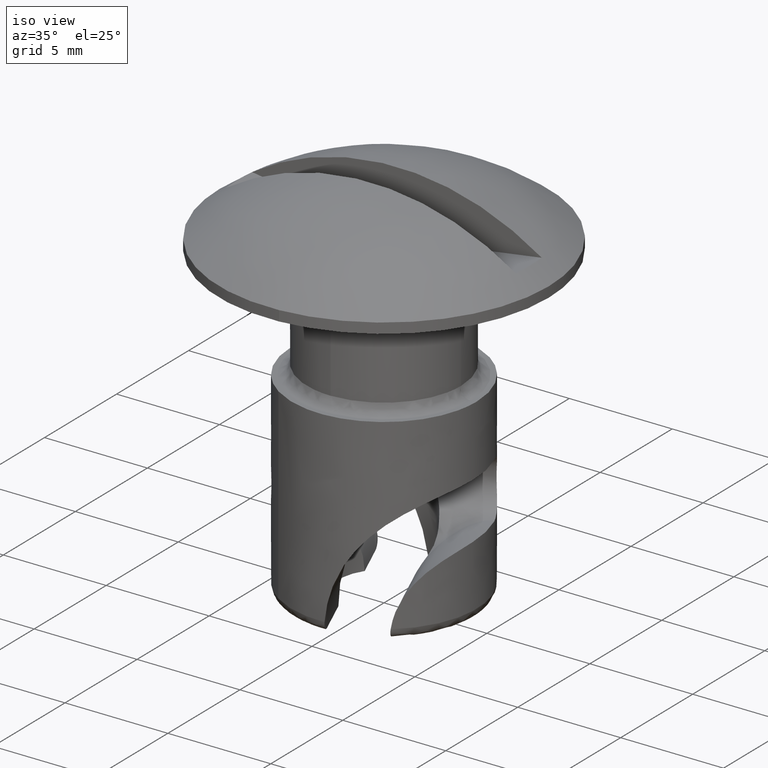
[diagram: clean part render]
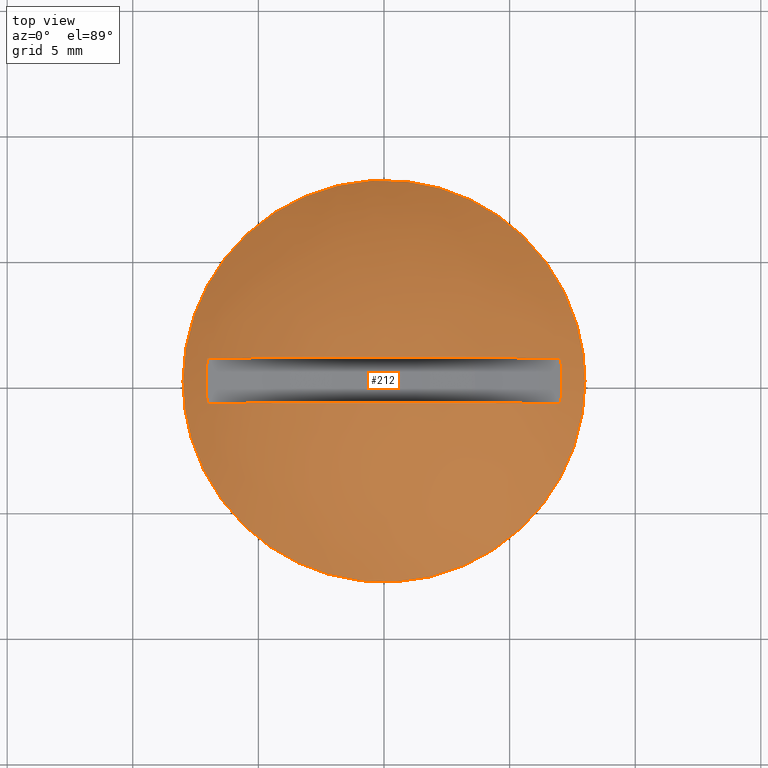
[diagram: tour spotlight — one face highlighted and labeled with its STEP entity id]
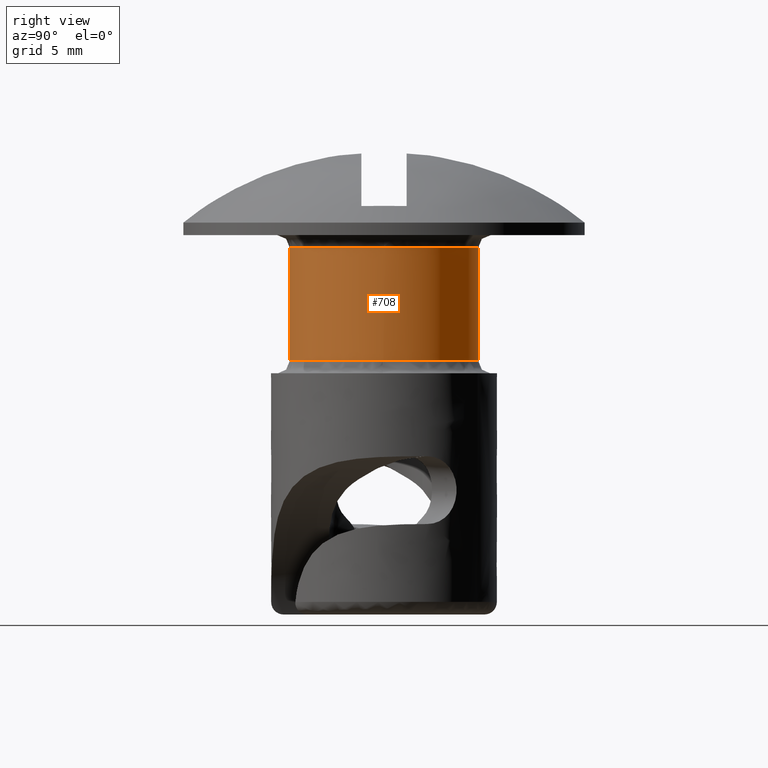
[diagram: tour spotlight — one face highlighted and labeled with its STEP entity id]
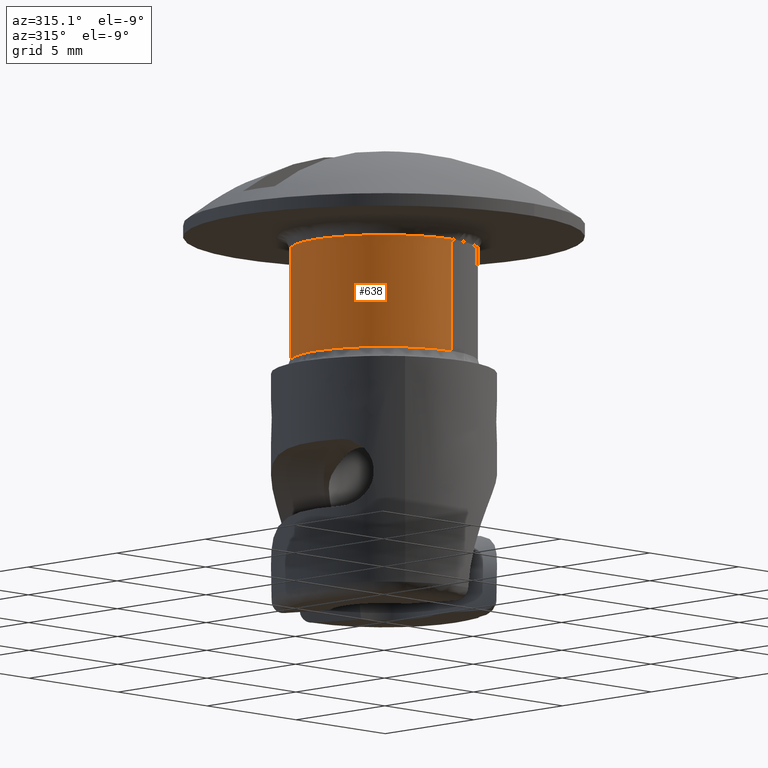
[diagram: tour spotlight — one face highlighted and labeled with its STEP entity id]
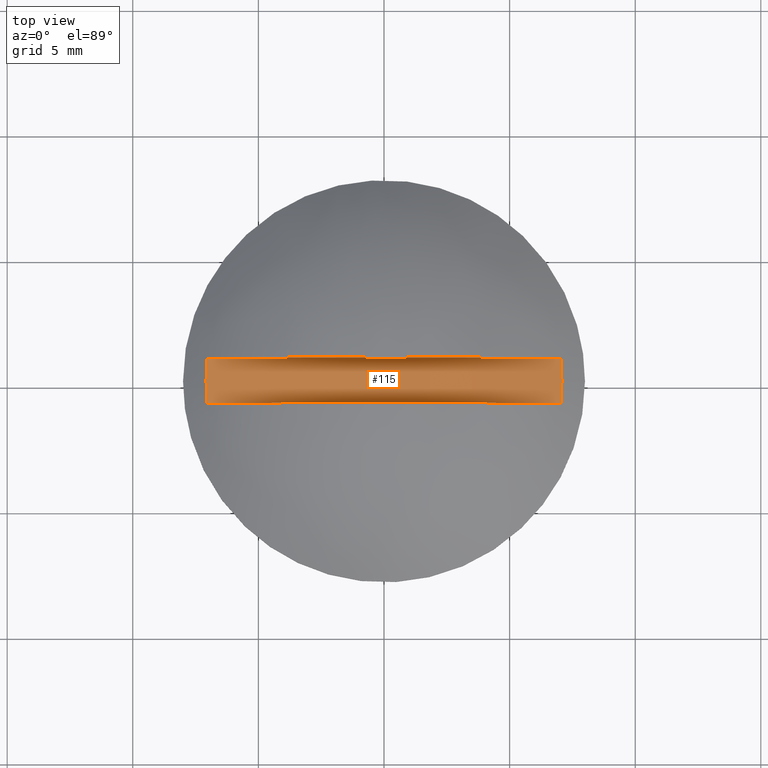
[diagram: tour spotlight — one face highlighted and labeled with its STEP entity id]
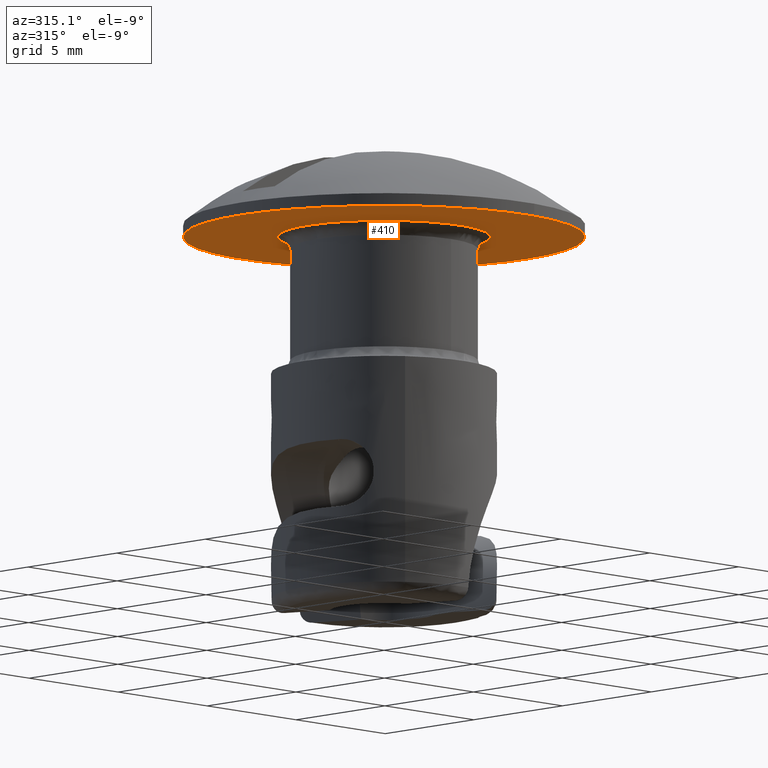
[diagram: tour spotlight — one face highlighted and labeled with its STEP entity id]
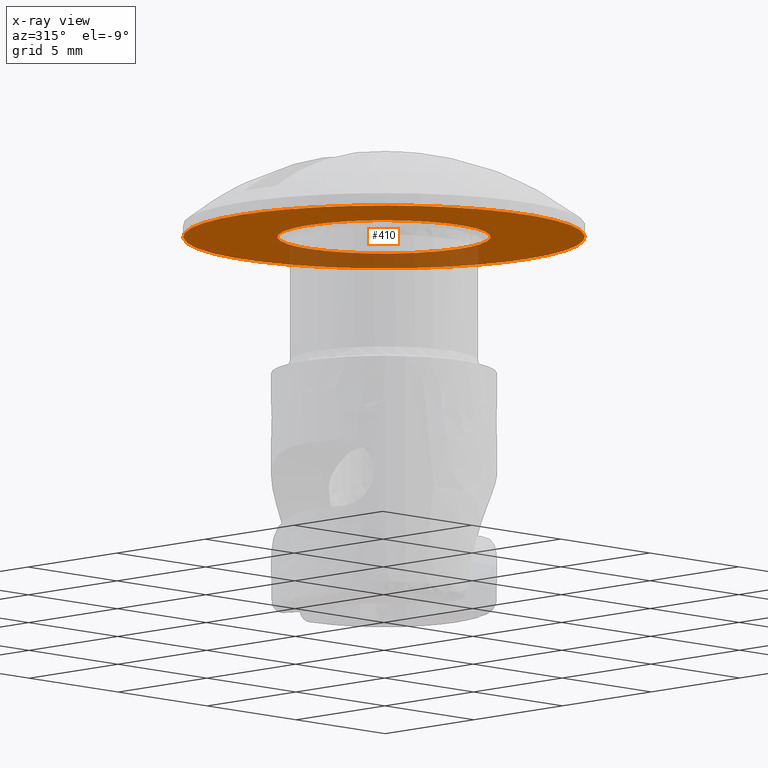
[diagram: x-ray of the same camera — body ghosted, this tour face saturated]
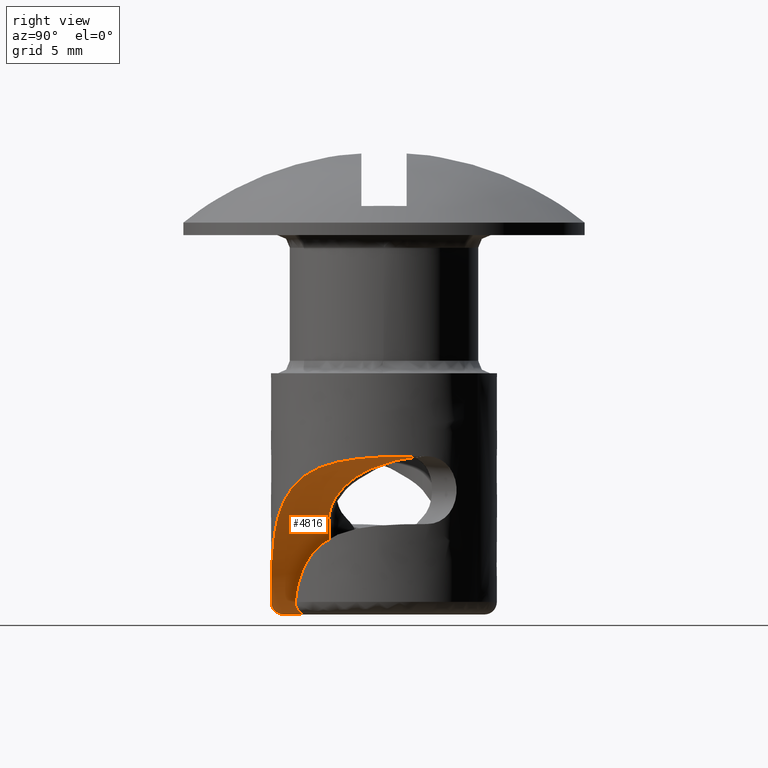
[diagram: tour spotlight — one face highlighted and labeled with its STEP entity id]
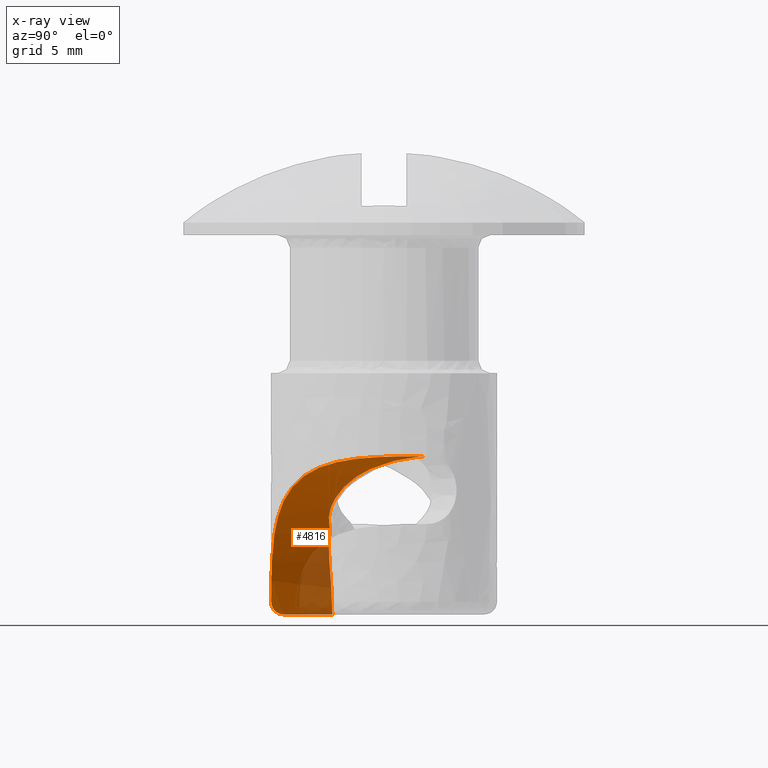
[diagram: x-ray of the same camera — body ghosted, this tour face saturated]
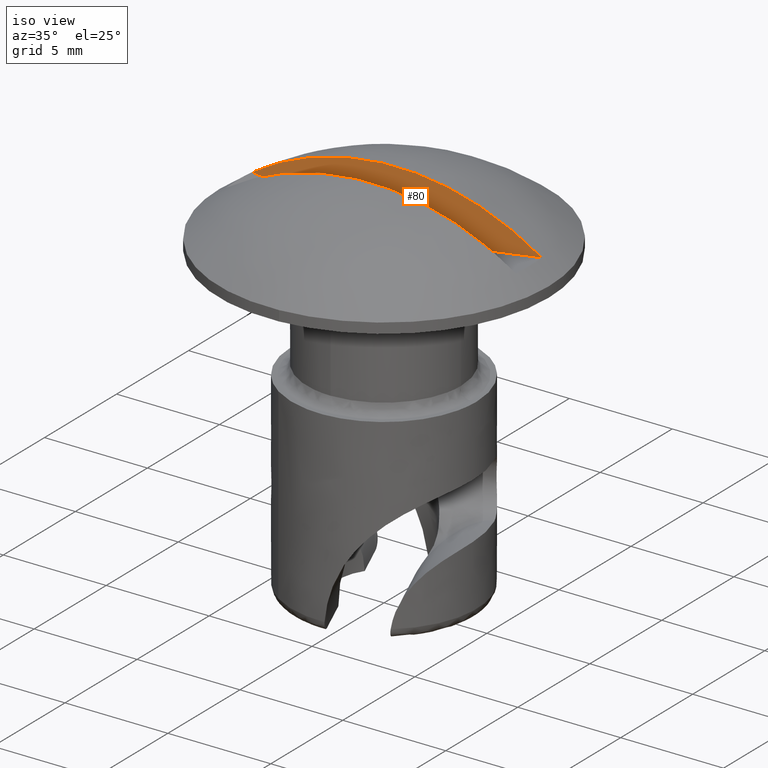
[diagram: tour spotlight — one face highlighted and labeled with its STEP entity id]
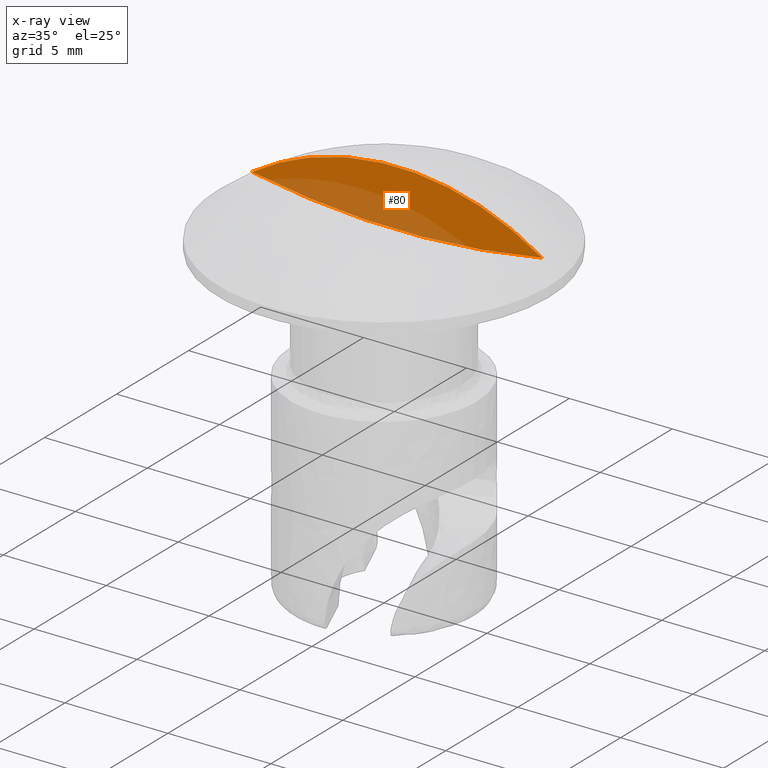
[diagram: x-ray of the same camera — body ghosted, this tour face saturated]
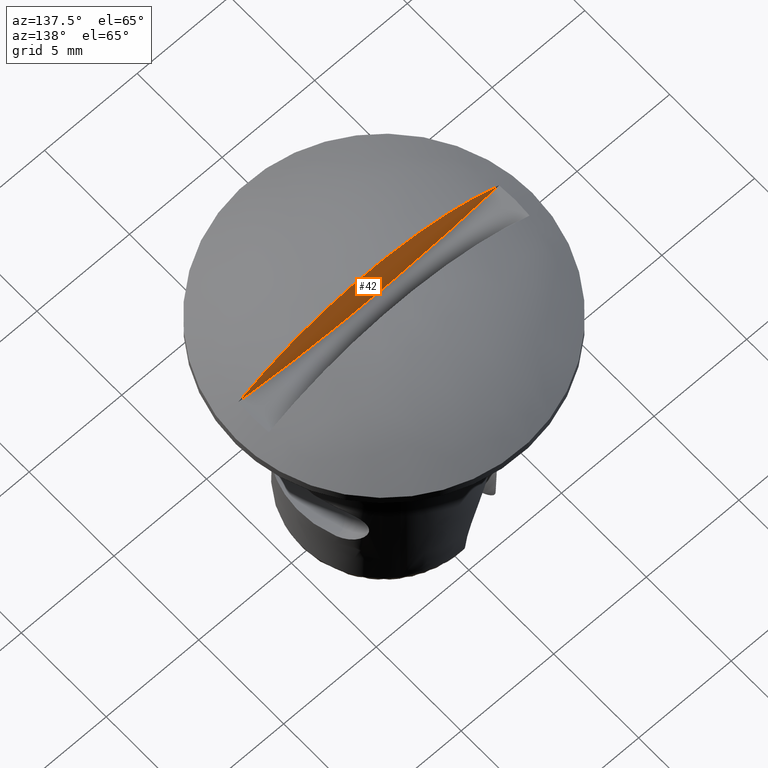
[diagram: tour spotlight — one face highlighted and labeled with its STEP entity id]
A machine part: a face-by-face anatomy tour. The part has 35 B-rep faces; the first image is the clean iso view, then the 8 largest visible faces are spotlighted one at a time (largest first), each with its STEP entity span.

Face 1 — top view, entity #212. In plain terms, the highlighted face is a freeform B-spline surface patch.
Definition (entity closure, byte-faithful):
#10=CARTESIAN_POINT('',(-7.040090653020159,-0.900008999999938,1.157837186402042));
#11=VERTEX_POINT('',#10);
#12=CARTESIAN_POINT('',(7.040090653020159,-0.900008999999938,1.157837186402042));
#13=VERTEX_POINT('',#12);
#27=CARTESIAN_POINT('',(7.040090653020159,-0.900008999999926,1.157837186402043));
#28=CARTESIAN_POINT('',(4.336809E-015,-0.900008999999926,5.795772674199783));
#29=CARTESIAN_POINT('',(-7.040090653020155,-0.900008999999926,1.157837186402047));
#37=(BOUNDED_CURVE()B_SPLINE_CURVE(2,(#27,#28,#29),.UNSPECIFIED.,.F.,.U.)CURVE()GEOMETRIC_REPRESENTATION_ITEM()QUASI_UNIFORM_CURVE()RATIONAL_B_SPLINE_CURVE((1.0,0.835073965011310,1.0))REPRESENTATION_ITEM(''));
#38=EDGE_CURVE('',#13,#11,#37,.T.);
#48=CARTESIAN_POINT('',(7.040092143945790,0.899993999999985,1.157837467485190));
#49=VERTEX_POINT('',#48);
#50=CARTESIAN_POINT('',(-7.040092143945790,0.899993999999985,1.157837467485190));
#51=VERTEX_POINT('',#50);
#52=CARTESIAN_POINT('',(7.040092143945790,0.899993999999985,1.157837467485190));
#53=CARTESIAN_POINT('',(4.336809E-015,0.899994000000000,5.795774797703460));
#54=CARTESIAN_POINT('',(-7.040092143945802,0.899994000000000,1.157837467485205));
#62=(BOUNDED_CURVE()B_SPLINE_CURVE(2,(#52,#53,#54),.UNSPECIFIED.,.F.,.U.)CURVE()GEOMETRIC_REPRESENTATION_ITEM()QUASI_UNIFORM_CURVE()RATIONAL_B_SPLINE_CURVE((1.0,0.835073918135382,1.0))REPRESENTATION_ITEM(''));
#63=EDGE_CURVE('',#49,#51,#62,.T.);
#96=CARTESIAN_POINT('',(-7.040090653020180,-0.900008999999938,1.157837186402043));
#97=CARTESIAN_POINT('',(-7.069909464981323,-0.600008525576324,1.163458905219448));
#98=CARTESIAN_POINT('',(-7.099436108812006,-0.000007550910516,1.169080671841083));
#99=CARTESIAN_POINT('',(-7.069910457476764,0.599993474423626,1.163459093566763));
#100=CARTESIAN_POINT('',(-7.040092143945828,0.899993999999985,1.157837467485197));
#101=B_SPLINE_CURVE_WITH_KNOTS('',3,(#96,#97,#98,#99,#100),.UNSPECIFIED.,.F.,.U.,(4,1,4),(0.0,0.500000000000000,1.0),.UNSPECIFIED.);
#102=EDGE_CURVE('',#11,#51,#101,.T.);
#105=CARTESIAN_POINT('',(7.040092143945790,0.899993999999985,1.157837467485190));
#106=CARTESIAN_POINT('',(7.069910457476764,0.599993474423626,1.163459093566763));
#107=CARTESIAN_POINT('',(7.099436108799436,-0.000007550910516,1.169080671844099));
#108=CARTESIAN_POINT('',(7.069909464981316,-0.600008525576324,1.163458905219455));
#109=CARTESIAN_POINT('',(7.040090653020172,-0.900008999999938,1.157837186402050));
#110=B_SPLINE_CURVE_WITH_KNOTS('',3,(#105,#106,#107,#108,#109),.UNSPECIFIED.,.F.,.U.,(4,1,4),(0.0,0.500000000000000,1.0),.UNSPECIFIED.);
#111=EDGE_CURVE('',#49,#13,#110,.T.);
#116=CARTESIAN_POINT('',(-7.618930572339843,-7.618760187737268,-2.565912735203555));
#117=CARTESIAN_POINT('',(-4.301156192815962,-8.602120009344578,-0.011441904909644));
#118=CARTESIAN_POINT('',(4.301155888053093,-8.602120009344578,-0.011441904909644));
#119=CARTESIAN_POINT('',(7.618930155918958,-7.618760311160833,-2.565912414586529));
#120=CARTESIAN_POINT('',(-8.602262726133631,-4.301035175478418,-0.011570902353071));
#121=CARTESIAN_POINT('',(-4.938550584456936,-4.938440142056833,3.299998999999996));
#122=CARTESIAN_POINT('',(4.938550234530829,-4.938440142056833,3.299998999999996));
#123=CARTESIAN_POINT('',(8.602262273953587,-4.301035254147751,-0.011570493634893));
#124=CARTESIAN_POINT('',(-8.602262726133631,4.301035492743208,-0.011570902353071));
#125=CARTESIAN_POINT('',(-4.938550584456936,4.938440506339639,3.299998999999996));
#126=CARTESIAN_POINT('',(4.938550234530829,4.938440506339639,3.299998999999996));
#127=CARTESIAN_POINT('',(8.602262273953587,4.301035571412545,-0.011570493634893));
#128=CARTESIAN_POINT('',(-7.618930443852475,7.618760621248715,-2.565913068967344));
#129=CARTESIAN_POINT('',(-4.301156110918048,8.602120480085644,-0.011442330392046));
#130=CARTESIAN_POINT('',(4.301155806155185,8.602120480085644,-0.011442330392046));
#131=CARTESIAN_POINT('',(7.618930027431595,7.618760744672284,-2.565912748350328));
#139=(BOUNDED_SURFACE()B_SPLINE_SURFACE(2,2,((#116,#120,#124,#128),(#117,#121,#125,#129),(#118,#122,#126,#130),(#119,#123,#127,#131)),.UNSPECIFIED.,.F.,.F.,.U.)B_SPLINE_SURFACE_WITH_KNOTS((3,1,3),(3,1,3),(0.887389974915981,9.954669916000457,19.021949214613439),(0.887592749422789,9.954669916000455,19.021747751408810),.UNSPECIFIED.)GEOMETRIC_REPRESENTATION_ITEM()RATIONAL_B_SPLINE_SURFACE(((1.296389444047726,1.148198036187303,1.148198036187303,1.296389465910331),(1.148191407860423,1.0,1.0,1.148191429723029),(1.148191407860423,1.0,1.0,1.148191429723029),(1.296389423046277,1.148198015185854,1.148198015185854,1.296389444908882)))REPRESENTATION_ITEM('')SURFACE());
#140=CARTESIAN_POINT('',(0.488382248304818,-7.985078758503498,0.500000000000000));
#141=VERTEX_POINT('',#140);
#142=CARTESIAN_POINT('',(-8.0,0.0,0.500000000000000));
#143=VERTEX_POINT('',#142);
#144=CARTESIAN_POINT('',(0.488382248304818,-7.985078758503498,0.500000000000000));
#145=CARTESIAN_POINT('',(0.244419063894726,-7.999999999997727,0.500000000000000));
#146=CARTESIAN_POINT('',(-1.360641E-013,-7.999999999997762,0.500000000000000));
#147=CARTESIAN_POINT('',(-8.000000000000066,-7.999999999998915,0.500000000000000));
#148=CARTESIAN_POINT('',(-8.0,0.0,0.500000000000000));
#156=(BOUNDED_CURVE()B_SPLINE_CURVE(2,(#144,#145,#146,#147,#148),.UNSPECIFIED.,.F.,.U.)B_SPLINE_CURVE_WITH_KNOTS((3,2,3),(0.739333093362728,0.750000000000000,1.0),.UNSPECIFIED.)CURVE()GEOMETRIC_REPRESENTATION_ITEM()RATIONAL_B_SPLINE_CURVE((0.976072322690110,0.987502941520907,1.0,0.707106781186548,1.0))REPRESENTATION_ITEM(''));
#157=EDGE_CURVE('',#141,#143,#156,.T.);
#158=ORIENTED_EDGE('',*,*,#157,.F.);
#159=CARTESIAN_POINT('',(8.0,0.0,0.500000000000000));
#160=VERTEX_POINT('',#159);
#161=CARTESIAN_POINT('',(8.0,0.0,0.500000000000000));
#162=CARTESIAN_POINT('',(7.999999999999930,-7.525654264779717,0.500000000000000));
#163=CARTESIAN_POINT('',(0.488382248304818,-7.985078758503498,0.500000000000000));
#171=(BOUNDED_CURVE()B_SPLINE_CURVE(2,(#161,#162,#163),.UNSPECIFIED.,.F.,.U.)B_SPLINE_CURVE_WITH_KNOTS((3,3),(0.500000000000000,0.739333093362728),.UNSPECIFIED.)CURVE()GEOMETRIC_REPRESENTATION_ITEM()RATIONAL_B_SPLINE_CURVE((1.0,0.719603839665640,0.976072322690110))REPRESENTATION_ITEM(''));
#172=EDGE_CURVE('',#160,#141,#171,.T.);
#173=ORIENTED_EDGE('',*,*,#172,.F.);
#174=CARTESIAN_POINT('',(-0.488382248304819,7.985078758503498,0.500000000000000));
#175=VERTEX_POINT('',#174);
#176=CARTESIAN_POINT('',(-0.488382248304818,7.985078758503499,0.500000000000000));
#177=CARTESIAN_POINT('',(-0.244419063894725,7.999999999997726,0.500000000000000));
#178=CARTESIAN_POINT('',(1.376262E-013,7.999999999997762,0.500000000000000));
#179=CARTESIAN_POINT('',(8.000000000000066,7.999999999998915,0.500000000000000));
#180=CARTESIAN_POINT('',(8.0,0.0,0.500000000000000));
#188=(BOUNDED_CURVE()B_SPLINE_CURVE(2,(#176,#177,#178,#179,#180),.UNSPECIFIED.,.F.,.U.)B_SPLINE_CURVE_WITH_KNOTS((3,2,3),(0.239333093362728,0.250000000000000,0.500000000000000),.UNSPECIFIED.)CURVE()GEOMETRIC_REPRESENTATION_ITEM()RATIONAL_B_SPLINE_CURVE((0.976072322690110,0.987502941520907,1.0,0.707106781186548,1.0))REPRESENTATION_ITEM(''));
#189=EDGE_CURVE('',#175,#160,#188,.T.);
#190=ORIENTED_EDGE('',*,*,#189,.F.);
#191=CARTESIAN_POINT('',(-8.0,0.0,0.500000000000000));
#192=CARTESIAN_POINT('',(-7.999999999999930,7.525654264779715,0.500000000000000));
#193=CARTESIAN_POINT('',(-0.488382248304818,7.985078758503499,0.500000000000000));
#201=(BOUNDED_CURVE()B_SPLINE_CURVE(2,(#191,#192,#193),.UNSPECIFIED.,.F.,.U.)B_SPLINE_CURVE_WITH_KNOTS((3,3),(0.0,0.239333093362728),.UNSPECIFIED.)CURVE()GEOMETRIC_REPRESENTATION_ITEM()RATIONAL_B_SPLINE_CURVE((1.0,0.719603839665640,0.976072322690110))REPRESENTATION_ITEM(''));
#202=EDGE_CURVE('',#143,#175,#201,.T.);
#203=ORIENTED_EDGE('',*,*,#202,.F.);
#204=EDGE_LOOP('',(#158,#173,#190,#203));
#205=FACE_OUTER_BOUND('',#204,.T.);
#206=ORIENTED_EDGE('',*,*,#63,.F.);
#207=ORIENTED_EDGE('',*,*,#111,.T.);
#208=ORIENTED_EDGE('',*,*,#38,.T.);
#209=ORIENTED_EDGE('',*,*,#102,.T.);
#210=EDGE_LOOP('',(#206,#207,#208,#209));
#211=FACE_BOUND('',#210,.T.);
#212=ADVANCED_FACE('',(#205,#211),#139,.T.);

Face 2 — right view, entity #708. In plain terms, the highlighted face is a freeform B-spline surface patch.
Definition (entity closure, byte-faithful):
#434=CARTESIAN_POINT('',(3.750000000000000,-4.127222E-016,-0.499999999895488));
#435=VERTEX_POINT('',#434);
#449=CARTESIAN_POINT('',(-0.032723291806115,3.749857222104848,-0.499999999895488));
#450=VERTEX_POINT('',#449);
#451=CARTESIAN_POINT('',(-0.032723291806115,3.749857222104847,-0.499999999895488));
#452=CARTESIAN_POINT('',(-0.016361957386501,3.749999999999802,-0.499999999895488));
#453=CARTESIAN_POINT('',(1.975902E-015,3.749999999999803,-0.499999999895488));
#454=CARTESIAN_POINT('',(3.750000000000002,3.749999999999901,-0.499999999895488));
#455=CARTESIAN_POINT('',(3.750000000000000,-4.127222E-016,-0.499999999895488));
#463=(BOUNDED_CURVE()B_SPLINE_CURVE(2,(#451,#452,#453,#454,#455),.UNSPECIFIED.,.F.,.U.)B_SPLINE_CURVE_WITH_KNOTS((3,2,3),(0.748460162799116,0.750000000000000,1.0),.UNSPECIFIED.)CURVE()GEOMETRIC_REPRESENTATION_ITEM()RATIONAL_B_SPLINE_CURVE((0.996414160324758,0.998195968503137,1.0,0.707106781186547,1.0))REPRESENTATION_ITEM(''));
#464=EDGE_CURVE('',#450,#435,#463,.T.);
#524=CARTESIAN_POINT('',(0.032723291806115,-3.749857222104848,-0.499999999895488));
#525=VERTEX_POINT('',#524);
#541=CARTESIAN_POINT('',(3.750000000000000,-4.127222E-016,-0.499999999895488));
#542=CARTESIAN_POINT('',(3.749999999999999,-3.717418245567589,-0.499999999895488));
#543=CARTESIAN_POINT('',(0.032723291806115,-3.749857222104847,-0.499999999895488));
#551=(BOUNDED_CURVE()B_SPLINE_CURVE(2,(#541,#542,#543),.UNSPECIFIED.,.F.,.U.)B_SPLINE_CURVE_WITH_KNOTS((3,3),(0.0,0.248460162799116),.UNSPECIFIED.)CURVE()GEOMETRIC_REPRESENTATION_ITEM()RATIONAL_B_SPLINE_CURVE((1.0,0.708910812683410,0.996414160324758))REPRESENTATION_ITEM(''));
#552=EDGE_CURVE('',#435,#525,#551,.T.);
#575=CARTESIAN_POINT('',(-0.032723502332519,3.749857220267737,-5.000000000008407));
#576=VERTEX_POINT('',#575);
#607=CARTESIAN_POINT('',(0.032723502332520,-3.749857220267736,-5.000000000008407));
#608=VERTEX_POINT('',#607);
#624=CARTESIAN_POINT('',(0.032723502332520,-3.749857220267736,-5.000000000008407));
#625=CARTESIAN_POINT('',(0.032723291806115,-3.749857222104848,-0.499999999895488));
#626=QUASI_UNIFORM_CURVE('',1,(#624,#625),.UNSPECIFIED.,.F.,.U.);
#627=EDGE_CURVE('',#608,#525,#626,.T.);
#631=CARTESIAN_POINT('',(-0.032723502332519,3.749857220267737,-5.000000000008407));
#632=CARTESIAN_POINT('',(-0.032723291806115,3.749857222104848,-0.499999999895488));
#633=QUASI_UNIFORM_CURVE('',1,(#631,#632),.UNSPECIFIED.,.F.,.U.);
#634=EDGE_CURVE('',#576,#450,#633,.T.);
#639=CARTESIAN_POINT('',(0.032724508118902,-3.749857211490641,-5.112500000019597));
#640=CARTESIAN_POINT('',(3.782581719609543,-3.717132703371740,-5.112500000019598));
#641=CARTESIAN_POINT('',(3.749857211490641,0.032724508118902,-5.112500000019597));
#642=CARTESIAN_POINT('',(3.717132703371740,3.782581719609543,-5.112500000019598));
#643=CARTESIAN_POINT('',(-0.032724508118902,3.749857211490641,-5.112500000019597));
#644=CARTESIAN_POINT('',(0.032724508118902,-3.749857211490641,-0.384687499892386));
#645=CARTESIAN_POINT('',(3.782581719609543,-3.717132703371740,-0.384687499892386));
#646=CARTESIAN_POINT('',(3.749857211490641,0.032724508118902,-0.384687499892386));
#647=CARTESIAN_POINT('',(3.717132703371740,3.782581719609543,-0.384687499892386));
#648=CARTESIAN_POINT('',(-0.032724508118902,3.749857211490641,-0.384687499892386));
#656=(BOUNDED_SURFACE()B_SPLINE_SURFACE(2,1,((#639,#644),(#640,#645),(#641,#646),(#642,#647),(#643,#648)),.UNSPECIFIED.,.F.,.F.,.U.)B_SPLINE_SURFACE_WITH_KNOTS((3,2,3),(2,2),(0.0,6.213203435596424,12.426406871192849),(0.0,4.727812500127212),.UNSPECIFIED.)GEOMETRIC_REPRESENTATION_ITEM()RATIONAL_B_SPLINE_SURFACE(((1.0,1.0),(0.707106781186548,0.707106781186548),(1.0,1.0),(0.707106781186548,0.707106781186548),(1.0,1.0)))REPRESENTATION_ITEM('')SURFACE());
#657=CARTESIAN_POINT('',(3.750000000000000,0.0,-5.0));
#658=VERTEX_POINT('',#657);
#659=CARTESIAN_POINT('',(3.750000000000000,0.0,-5.0));
#660=CARTESIAN_POINT('',(3.750000000000002,3.749999999999932,-5.000000000000051));
#661=CARTESIAN_POINT('',(1.229327E-015,3.749999999999865,-5.000000000008334));
#662=CARTESIAN_POINT('',(-0.016362062655715,3.749999999999865,-5.000000000008370));
#663=CARTESIAN_POINT('',(-0.032723502332519,3.749857220267737,-5.000000000008407));
#671=(BOUNDED_CURVE()B_SPLINE_CURVE(2,(#659,#660,#661,#662,#663),.UNSPECIFIED.,.F.,.U.)B_SPLINE_CURVE_WITH_KNOTS((3,2,3),(0.0,0.250000000000000,0.251539847089983),.UNSPECIFIED.)CURVE()GEOMETRIC_REPRESENTATION_ITEM()RATIONAL_B_SPLINE_CURVE((1.0,0.707106781186547,1.0,0.998195956917337,0.996414137438602))REPRESENTATION_ITEM(''));
#672=EDGE_CURVE('',#658,#576,#671,.T.);
#673=ORIENTED_EDGE('',*,*,#672,.T.);
#674=ORIENTED_EDGE('',*,*,#634,.T.);
#675=ORIENTED_EDGE('',*,*,#464,.T.);
#676=ORIENTED_EDGE('',*,*,#552,.T.);
#677=ORIENTED_EDGE('',*,*,#627,.F.);
#678=CARTESIAN_POINT('',(3.749703915764134,-0.047122649576601,-5.000000000016570));
#679=VERTEX_POINT('',#678);
#680=CARTESIAN_POINT('',(0.032723502332520,-3.749857220267737,-5.000000000008407));
#681=CARTESIAN_POINT('',(3.703574104306270,-3.717823177054969,-5.000000000016519));
#682=CARTESIAN_POINT('',(3.749703915764134,-0.047122649576601,-5.000000000016571));
#690=(BOUNDED_CURVE()B_SPLINE_CURVE(2,(#680,#681,#682),.UNSPECIFIED.,.F.,.U.)B_SPLINE_CURVE_WITH_KNOTS((3,3),(0.751539847089983,0.997784295921070),.UNSPECIFIED.)CURVE()GEOMETRIC_REPRESENTATION_ITEM()RATIONAL_B_SPLINE_CURVE((0.996414137438602,0.711474705262739,0.994854295642498))REPRESENTATION_ITEM(''));
#691=EDGE_CURVE('',#608,#679,#690,.T.);
#692=ORIENTED_EDGE('',*,*,#691,.T.);
#693=CARTESIAN_POINT('',(3.749703915764134,-0.047122649576601,-5.000000000016571));
#694=CARTESIAN_POINT('',(3.750000000000000,-0.023562254976602,-5.000000000008285));
#695=CARTESIAN_POINT('',(3.750000000000000,0.0,-5.0));
#703=(BOUNDED_CURVE()B_SPLINE_CURVE(2,(#693,#694,#695),.UNSPECIFIED.,.F.,.U.)B_SPLINE_CURVE_WITH_KNOTS((3,3),(0.997784295921070,1.0),.UNSPECIFIED.)CURVE()GEOMETRIC_REPRESENTATION_ITEM()RATIONAL_B_SPLINE_CURVE((0.994854295642498,0.997404141201537,1.0))REPRESENTATION_ITEM(''));
#704=EDGE_CURVE('',#679,#658,#703,.T.);
#705=ORIENTED_EDGE('',*,*,#704,.T.);
#706=EDGE_LOOP('',(#673,#674,#675,#676,#677,#692,#705));
#707=FACE_OUTER_BOUND('',#706,.T.);
#708=ADVANCED_FACE('',(#707),#656,.T.);

Face 3 — auxiliary view, entity #638. In plain terms, the highlighted face is a freeform B-spline surface patch.
Definition (entity closure, byte-faithful):
#449=CARTESIAN_POINT('',(-0.032723291806115,3.749857222104848,-0.499999999895488));
#450=VERTEX_POINT('',#449);
#466=CARTESIAN_POINT('',(-3.750000000000000,1.908685E-016,-0.499999999895488));
#467=VERTEX_POINT('',#466);
#468=CARTESIAN_POINT('',(-3.750000000000000,1.908685E-016,-0.499999999895488));
#469=CARTESIAN_POINT('',(-3.749999999999999,3.717418245567588,-0.499999999895488));
#470=CARTESIAN_POINT('',(-0.032723291806115,3.749857222104847,-0.499999999895488));
#478=(BOUNDED_CURVE()B_SPLINE_CURVE(2,(#468,#469,#470),.UNSPECIFIED.,.F.,.U.)B_SPLINE_CURVE_WITH_KNOTS((3,3),(0.500000000000000,0.748460162799116),.UNSPECIFIED.)CURVE()GEOMETRIC_REPRESENTATION_ITEM()RATIONAL_B_SPLINE_CURVE((1.0,0.708910812683410,0.996414160324758))REPRESENTATION_ITEM(''));
#479=EDGE_CURVE('',#467,#450,#478,.T.);
#524=CARTESIAN_POINT('',(0.032723291806115,-3.749857222104848,-0.499999999895488));
#525=VERTEX_POINT('',#524);
#526=CARTESIAN_POINT('',(0.032723291806115,-3.749857222104847,-0.499999999895488));
#527=CARTESIAN_POINT('',(0.016361957386501,-3.749999999999802,-0.499999999895488));
#528=CARTESIAN_POINT('',(-1.609739E-015,-3.749999999999803,-0.499999999895488));
#529=CARTESIAN_POINT('',(-3.750000000000000,-3.749999999999902,-0.499999999895488));
#530=CARTESIAN_POINT('',(-3.750000000000000,1.908685E-016,-0.499999999895488));
#538=(BOUNDED_CURVE()B_SPLINE_CURVE(2,(#526,#527,#528,#529,#530),.UNSPECIFIED.,.F.,.U.)B_SPLINE_CURVE_WITH_KNOTS((3,2,3),(0.248460162799116,0.250000000000000,0.500000000000000),.UNSPECIFIED.)CURVE()GEOMETRIC_REPRESENTATION_ITEM()RATIONAL_B_SPLINE_CURVE((0.996414160324758,0.998195968503137,1.0,0.707106781186547,1.0))REPRESENTATION_ITEM(''));
#539=EDGE_CURVE('',#525,#467,#538,.T.);
#557=CARTESIAN_POINT('',(-0.032724508118902,3.749857211490641,-5.112500000019597));
#558=CARTESIAN_POINT('',(-3.782581719609543,3.717132703371740,-5.112500000019598));
#559=CARTESIAN_POINT('',(-3.749857211490641,-0.032724508118902,-5.112500000019597));
#560=CARTESIAN_POINT('',(-3.717132703371740,-3.782581719609543,-5.112500000019598));
#561=CARTESIAN_POINT('',(0.032724508118902,-3.749857211490641,-5.112500000019597));
#562=CARTESIAN_POINT('',(-0.032724508118902,3.749857211490641,-0.384687499892386));
#563=CARTESIAN_POINT('',(-3.782581719609543,3.717132703371740,-0.384687499892386));
#564=CARTESIAN_POINT('',(-3.749857211490641,-0.032724508118902,-0.384687499892386));
#565=CARTESIAN_POINT('',(-3.717132703371740,-3.782581719609543,-0.384687499892386));
#566=CARTESIAN_POINT('',(0.032724508118902,-3.749857211490641,-0.384687499892386));
#574=(BOUNDED_SURFACE()B_SPLINE_SURFACE(2,1,((#557,#562),(#558,#563),(#559,#564),(#560,#565),(#561,#566)),.UNSPECIFIED.,.F.,.F.,.U.)B_SPLINE_SURFACE_WITH_KNOTS((3,2,3),(2,2),(0.0,6.213203435596424,12.426406871192849),(0.0,4.727812500127212),.UNSPECIFIED.)GEOMETRIC_REPRESENTATION_ITEM()RATIONAL_B_SPLINE_SURFACE(((1.0,1.0),(0.707106781186548,0.707106781186548),(1.0,1.0),(0.707106781186548,0.707106781186548),(1.0,1.0)))REPRESENTATION_ITEM('')SURFACE());
#575=CARTESIAN_POINT('',(-0.032723502332519,3.749857220267737,-5.000000000008407));
#576=VERTEX_POINT('',#575);
#577=CARTESIAN_POINT('',(-3.749703915764134,0.047122649576601,-5.000000000016570));
#578=VERTEX_POINT('',#577);
#579=CARTESIAN_POINT('',(-0.032723502332519,3.749857220267737,-5.000000000008407));
#580=CARTESIAN_POINT('',(-3.703574104306271,3.717823177054970,-5.000000000016519));
#581=CARTESIAN_POINT('',(-3.749703915764134,0.047122649576601,-5.000000000016571));
#589=(BOUNDED_CURVE()B_SPLINE_CURVE(2,(#579,#580,#581),.UNSPECIFIED.,.F.,.U.)B_SPLINE_CURVE_WITH_KNOTS((3,3),(0.251539847089983,0.497784295921070),.UNSPECIFIED.)CURVE()GEOMETRIC_REPRESENTATION_ITEM()RATIONAL_B_SPLINE_CURVE((0.996414137438602,0.711474705262739,0.994854295642498))REPRESENTATION_ITEM(''));
#590=EDGE_CURVE('',#576,#578,#589,.T.);
#591=ORIENTED_EDGE('',*,*,#590,.T.);
#592=CARTESIAN_POINT('',(-3.750000000000000,0.0,-5.0));
#593=VERTEX_POINT('',#592);
#594=CARTESIAN_POINT('',(-3.749703915764134,0.047122649576601,-5.000000000016571));
#595=CARTESIAN_POINT('',(-3.750000000000000,0.023562254976602,-5.000000000008285));
#596=CARTESIAN_POINT('',(-3.750000000000000,0.0,-5.0));
#604=(BOUNDED_CURVE()B_SPLINE_CURVE(2,(#594,#595,#596),.UNSPECIFIED.,.F.,.U.)B_SPLINE_CURVE_WITH_KNOTS((3,3),(0.497784295921070,0.500000000000000),.UNSPECIFIED.)CURVE()GEOMETRIC_REPRESENTATION_ITEM()RATIONAL_B_SPLINE_CURVE((0.994854295642498,0.997404141201537,1.0))REPRESENTATION_ITEM(''));
#605=EDGE_CURVE('',#578,#593,#604,.T.);
#606=ORIENTED_EDGE('',*,*,#605,.T.);
#607=CARTESIAN_POINT('',(0.032723502332520,-3.749857220267736,-5.000000000008407));
#608=VERTEX_POINT('',#607);
#609=CARTESIAN_POINT('',(-3.750000000000000,0.0,-5.0));
#610=CARTESIAN_POINT('',(-3.750000000000000,-3.749999999999932,-5.000000000000052));
#611=CARTESIAN_POINT('',(-1.734096E-015,-3.749999999999865,-5.000000000008336));
#612=CARTESIAN_POINT('',(0.016362062655715,-3.749999999999865,-5.000000000008372));
#613=CARTESIAN_POINT('',(0.032723502332520,-3.749857220267737,-5.000000000008407));
#621=(BOUNDED_CURVE()B_SPLINE_CURVE(2,(#609,#610,#611,#612,#613),.UNSPECIFIED.,.F.,.U.)B_SPLINE_CURVE_WITH_KNOTS((3,2,3),(0.500000000000000,0.750000000000000,0.751539847089983),.UNSPECIFIED.)CURVE()GEOMETRIC_REPRESENTATION_ITEM()RATIONAL_B_SPLINE_CURVE((1.0,0.707106781186547,1.0,0.998195956917337,0.996414137438602))REPRESENTATION_ITEM(''));
#622=EDGE_CURVE('',#593,#608,#621,.T.);
#623=ORIENTED_EDGE('',*,*,#622,.T.);
#624=CARTESIAN_POINT('',(0.032723502332520,-3.749857220267736,-5.000000000008407));
#625=CARTESIAN_POINT('',(0.032723291806115,-3.749857222104848,-0.499999999895488));
#626=QUASI_UNIFORM_CURVE('',1,(#624,#625),.UNSPECIFIED.,.F.,.U.);
#627=EDGE_CURVE('',#608,#525,#626,.T.);
#628=ORIENTED_EDGE('',*,*,#627,.T.);
#629=ORIENTED_EDGE('',*,*,#539,.T.);
#630=ORIENTED_EDGE('',*,*,#479,.T.);
#631=CARTESIAN_POINT('',(-0.032723502332519,3.749857220267737,-5.000000000008407));
#632=CARTESIAN_POINT('',(-0.032723291806115,3.749857222104848,-0.499999999895488));
#633=QUASI_UNIFORM_CURVE('',1,(#631,#632),.UNSPECIFIED.,.F.,.U.);
#634=EDGE_CURVE('',#576,#450,#633,.T.);
#635=ORIENTED_EDGE('',*,*,#634,.F.);
#636=EDGE_LOOP('',(#591,#606,#623,#628,#629,#630,#635));
#637=FACE_OUTER_BOUND('',#636,.T.);
#638=ADVANCED_FACE('',(#637),#574,.T.);

Face 4 — top view, entity #115. In plain terms, the highlighted face is a freeform B-spline surface patch.
Definition (entity closure, byte-faithful):
#10=CARTESIAN_POINT('',(-7.040090653020159,-0.900008999999938,1.157837186402042));
#11=VERTEX_POINT('',#10);
#12=CARTESIAN_POINT('',(7.040090653020159,-0.900008999999938,1.157837186402042));
#13=VERTEX_POINT('',#12);
#14=CARTESIAN_POINT('',(-7.040090653020159,-0.900008999999938,1.157837186402042));
#15=CARTESIAN_POINT('',(-9.540979E-015,-0.900008999999979,-0.169425957142866));
#16=CARTESIAN_POINT('',(7.040090653020148,-0.900008999999979,1.157837186402042));
#24=(BOUNDED_CURVE()B_SPLINE_CURVE(2,(#14,#15,#16),.UNSPECIFIED.,.F.,.U.)CURVE()GEOMETRIC_REPRESENTATION_ITEM()QUASI_UNIFORM_CURVE()RATIONAL_B_SPLINE_CURVE((1.0,0.982688495094683,1.0))REPRESENTATION_ITEM(''));
#25=EDGE_CURVE('',#11,#13,#24,.T.);
#48=CARTESIAN_POINT('',(7.040092143945790,0.899993999999985,1.157837467485190));
#49=VERTEX_POINT('',#48);
#50=CARTESIAN_POINT('',(-7.040092143945790,0.899993999999985,1.157837467485190));
#51=VERTEX_POINT('',#50);
#65=CARTESIAN_POINT('',(-7.040092143945793,0.899993999999960,1.157837467485191));
#66=CARTESIAN_POINT('',(-9.540979E-015,0.899993999999960,-0.169426248216635));
#67=CARTESIAN_POINT('',(7.040092143945783,0.899993999999960,1.157837467485191));
#75=(BOUNDED_CURVE()B_SPLINE_CURVE(2,(#65,#66,#67),.UNSPECIFIED.,.F.,.U.)CURVE()GEOMETRIC_REPRESENTATION_ITEM()QUASI_UNIFORM_CURVE()RATIONAL_B_SPLINE_CURVE((1.0,0.982688487697758,1.0))REPRESENTATION_ITEM(''));
#76=EDGE_CURVE('',#51,#49,#75,.T.);
#81=CARTESIAN_POINT('',(7.777742057891933,0.944994074999984,1.304479725632316));
#82=CARTESIAN_POINT('',(7.777742057891933,-0.946134076874978,1.304479725632316));
#83=CARTESIAN_POINT('',(-0.000402200696170,0.944994074999984,-0.321963439730823));
#84=CARTESIAN_POINT('',(-0.000402200696170,-0.946134076874978,-0.321963439730823));
#85=CARTESIAN_POINT('',(-7.778512757280265,0.944994074999984,1.304640890497819));
#86=CARTESIAN_POINT('',(-7.778512757280265,-0.946134076874978,1.304640890497819));
#94=(BOUNDED_SURFACE()B_SPLINE_SURFACE(1,2,((#81,#83,#85),(#82,#84,#86)),.UNSPECIFIED.,.F.,.F.,.U.)B_SPLINE_SURFACE_WITH_KNOTS((2,2),(3,3),(0.0,1.0),(0.917406220972538,16.640232662618160),.UNSPECIFIED.)GEOMETRIC_REPRESENTATION_ITEM()RATIONAL_B_SPLINE_SURFACE(((0.997325748884385,0.975641010645235,0.996164044743648),(0.997325748884385,0.975641010645235,0.996164044743648)))REPRESENTATION_ITEM('')SURFACE());
#95=ORIENTED_EDGE('',*,*,#76,.F.);
#96=CARTESIAN_POINT('',(-7.040090653020180,-0.900008999999938,1.157837186402043));
#97=CARTESIAN_POINT('',(-7.069909464981323,-0.600008525576324,1.163458905219448));
#98=CARTESIAN_POINT('',(-7.099436108812006,-0.000007550910516,1.169080671841083));
#99=CARTESIAN_POINT('',(-7.069910457476764,0.599993474423626,1.163459093566763));
#100=CARTESIAN_POINT('',(-7.040092143945828,0.899993999999985,1.157837467485197));
#101=B_SPLINE_CURVE_WITH_KNOTS('',3,(#96,#97,#98,#99,#100),.UNSPECIFIED.,.F.,.U.,(4,1,4),(0.0,0.500000000000000,1.0),.UNSPECIFIED.);
#102=EDGE_CURVE('',#11,#51,#101,.T.);
#103=ORIENTED_EDGE('',*,*,#102,.F.);
#104=ORIENTED_EDGE('',*,*,#25,.T.);
#105=CARTESIAN_POINT('',(7.040092143945790,0.899993999999985,1.157837467485190));
#106=CARTESIAN_POINT('',(7.069910457476764,0.599993474423626,1.163459093566763));
#107=CARTESIAN_POINT('',(7.099436108799436,-0.000007550910516,1.169080671844099));
#108=CARTESIAN_POINT('',(7.069909464981316,-0.600008525576324,1.163458905219455));
#109=CARTESIAN_POINT('',(7.040090653020172,-0.900008999999938,1.157837186402050));
#110=B_SPLINE_CURVE_WITH_KNOTS('',3,(#105,#106,#107,#108,#109),.UNSPECIFIED.,.F.,.U.,(4,1,4),(0.0,0.500000000000000,1.0),.UNSPECIFIED.);
#111=EDGE_CURVE('',#49,#13,#110,.T.);
#112=ORIENTED_EDGE('',*,*,#111,.F.);
#113=EDGE_LOOP('',(#95,#103,#104,#112));
#114=FACE_OUTER_BOUND('',#113,.T.);
#115=ADVANCED_FACE('',(#114),#94,.F.);

Face 5 — auxiliary view, entity #410. An x-ray twin of the same camera follows (body ghosted, this face saturated) — the face is partly hidden behind the body. In plain terms, the highlighted face is a freeform B-spline surface patch.
Definition (entity closure, byte-faithful):
#231=CARTESIAN_POINT('',(-0.488382172481899,7.985078763140910,-1.278951E-013));
#232=VERTEX_POINT('',#231);
#233=CARTESIAN_POINT('',(8.0,0.0,0.0));
#234=VERTEX_POINT('',#233);
#235=CARTESIAN_POINT('',(-0.488382172481899,7.985078763140910,-1.278951E-013));
#236=CARTESIAN_POINT('',(-0.244419025876967,7.999999999997670,-1.260572E-013));
#237=CARTESIAN_POINT('',(1.398885E-013,7.999999999997707,-1.241034E-013));
#238=CARTESIAN_POINT('',(8.000000000000069,7.999999999998890,-6.015589E-014));
#239=CARTESIAN_POINT('',(8.0,0.0,0.0));
#247=(BOUNDED_CURVE()B_SPLINE_CURVE(2,(#235,#236,#237,#238,#239),.UNSPECIFIED.,.F.,.U.)B_SPLINE_CURVE_WITH_KNOTS((3,2,3),(0.239333095001159,0.250000000000000,0.500000000000000),.UNSPECIFIED.)CURVE()GEOMETRIC_REPRESENTATION_ITEM()RATIONAL_B_SPLINE_CURVE((0.976072326201585,0.987502943440449,1.0,0.707106781186548,1.0))REPRESENTATION_ITEM(''));
#248=EDGE_CURVE('',#232,#234,#247,.T.);
#257=CARTESIAN_POINT('',(0.488382172481897,-7.985078763140910,-1.278378E-013));
#258=VERTEX_POINT('',#257);
#264=CARTESIAN_POINT('',(8.0,0.0,0.0));
#265=CARTESIAN_POINT('',(7.999999999999928,-7.525654336373638,-6.391892E-014));
#266=CARTESIAN_POINT('',(0.488382172481897,-7.985078763140910,-1.278378E-013));
#274=(BOUNDED_CURVE()B_SPLINE_CURVE(2,(#264,#265,#266),.UNSPECIFIED.,.F.,.U.)B_SPLINE_CURVE_WITH_KNOTS((3,3),(0.500000000000000,0.739333095001159),.UNSPECIFIED.)CURVE()GEOMETRIC_REPRESENTATION_ITEM()RATIONAL_B_SPLINE_CURVE((1.0,0.719603837746098,0.976072326201585))REPRESENTATION_ITEM(''));
#275=EDGE_CURVE('',#234,#258,#274,.T.);
#298=CARTESIAN_POINT('',(-8.0,0.0,0.0));
#299=VERTEX_POINT('',#298);
#300=CARTESIAN_POINT('',(-8.0,0.0,0.0));
#301=CARTESIAN_POINT('',(-7.999999999999928,7.525654336373638,-6.394755E-014));
#302=CARTESIAN_POINT('',(-0.488382172481899,7.985078763140910,-1.278951E-013));
#310=(BOUNDED_CURVE()B_SPLINE_CURVE(2,(#300,#301,#302),.UNSPECIFIED.,.F.,.U.)B_SPLINE_CURVE_WITH_KNOTS((3,3),(0.0,0.239333095001159),.UNSPECIFIED.)CURVE()GEOMETRIC_REPRESENTATION_ITEM()RATIONAL_B_SPLINE_CURVE((1.0,0.719603837746098,0.976072326201585))REPRESENTATION_ITEM(''));
#311=EDGE_CURVE('',#299,#232,#310,.T.);
#313=CARTESIAN_POINT('',(0.488382172481897,-7.985078763140910,-1.278378E-013));
#314=CARTESIAN_POINT('',(0.244419025876966,-7.999999999997669,-1.260008E-013));
#315=CARTESIAN_POINT('',(-1.404811E-013,-7.999999999997706,-1.240479E-013));
#316=CARTESIAN_POINT('',(-8.000000000000069,-7.999999999998890,-6.012896E-014));
#317=CARTESIAN_POINT('',(-8.0,0.0,0.0));
#325=(BOUNDED_CURVE()B_SPLINE_CURVE(2,(#313,#314,#315,#316,#317),.UNSPECIFIED.,.F.,.U.)B_SPLINE_CURVE_WITH_KNOTS((3,2,3),(0.739333095001159,0.750000000000000,1.0),.UNSPECIFIED.)CURVE()GEOMETRIC_REPRESENTATION_ITEM()RATIONAL_B_SPLINE_CURVE((0.976072326201585,0.987502943440449,1.0,0.707106781186548,1.0))REPRESENTATION_ITEM(''));
#326=EDGE_CURVE('',#258,#299,#325,.T.);
#335=CARTESIAN_POINT('',(-8.799199968988896,-8.799003098473550,0.0));
#336=CARTESIAN_POINT('',(8.799200398142338,-8.799003098473550,0.0));
#337=CARTESIAN_POINT('',(-8.799199968988896,8.799002812371255,0.0));
#338=CARTESIAN_POINT('',(8.799200398142338,8.799002812371255,0.0));
#339=B_SPLINE_SURFACE_WITH_KNOTS('',1,1,((#335,#337),(#336,#338)),.UNSPECIFIED.,.F.,.F.,.U.,(2,2),(2,2),(0.0,17.598400367131230),(0.0,17.598005910844812),.UNSPECIFIED.);
#340=ORIENTED_EDGE('',*,*,#311,.T.);
#341=ORIENTED_EDGE('',*,*,#248,.T.);
#342=ORIENTED_EDGE('',*,*,#275,.T.);
#343=ORIENTED_EDGE('',*,*,#326,.T.);
#344=EDGE_LOOP('',(#340,#341,#342,#343));
#345=FACE_OUTER_BOUND('',#344,.T.);
#346=CARTESIAN_POINT('',(4.249999999987939,-4.140593E-016,5.486945E-014));
#347=VERTEX_POINT('',#346);
#348=CARTESIAN_POINT('',(-4.249999999993969,9.609870E-017,1.369639E-014));
#349=VERTEX_POINT('',#348);
#350=CARTESIAN_POINT('',(4.249999999987939,-4.140593E-016,5.486945E-014));
#351=CARTESIAN_POINT('',(4.250014025612679,0.217310907404734,5.205875E-014));
#352=CARTESIAN_POINT('',(4.224603513421734,0.547618584598436,4.782783E-014));
#353=CARTESIAN_POINT('',(4.109331009311470,1.136711943722354,4.039565E-014));
#354=CARTESIAN_POINT('',(3.929157022364037,1.665712876437071,3.384604E-014));
#355=CARTESIAN_POINT('',(3.649111469127741,2.197394426886443,2.742386E-014));
#356=CARTESIAN_POINT('',(3.358531388542973,2.620944772452132,2.241734E-014));
#357=CARTESIAN_POINT('',(3.042278358345032,2.980811484824551,1.827615E-014));
#358=CARTESIAN_POINT('',(2.603791682094434,3.378268225374485,1.384719E-014));
#359=CARTESIAN_POINT('',(2.132841473382626,3.695037930545107,1.051447E-014));
#360=CARTESIAN_POINT('',(1.558315774769061,3.966745243272155,7.932818E-015));
#361=CARTESIAN_POINT('',(1.093918437683130,4.117008454685400,6.742726E-015));
#362=CARTESIAN_POINT('',(0.598980071966890,4.215448424129464,6.263436E-015));
#363=CARTESIAN_POINT('',(0.069991871668843,4.264293160499466,6.555366E-015));
#364=CARTESIAN_POINT('',(-0.600720643813156,4.229289725732951,7.833379E-015));
#365=CARTESIAN_POINT('',(-1.238624239853666,4.081931810232431,8.787544E-015));
#366=CARTESIAN_POINT('',(-1.757216087900824,3.878190092649202,9.654435E-015));
#367=CARTESIAN_POINT('',(-2.143473047074101,3.677786848026913,1.027736E-014));
#368=CARTESIAN_POINT('',(-2.603087897416151,3.378812721010146,1.102336E-014));
#369=CARTESIAN_POINT('',(-3.035983204116029,2.998382483340404,1.172597E-014));
#370=CARTESIAN_POINT('',(-3.454894376479140,2.497384406421633,1.240589E-014));
#371=CARTESIAN_POINT('',(-3.765884542374308,2.002936714041558,1.291065E-014));
#372=CARTESIAN_POINT('',(-4.007853744585058,1.452488241506767,1.330338E-014));
#373=CARTESIAN_POINT('',(-4.197498843433551,0.790996540418658,1.361118E-014));
#374=CARTESIAN_POINT('',(-4.250048553207393,0.304240425844743,1.369647E-014));
#375=CARTESIAN_POINT('',(-4.249999999993969,9.609870E-017,1.369639E-014));
#376=B_SPLINE_CURVE_WITH_KNOTS('',3,(#350,#351,#352,#353,#354,#355,#356,#357,#358,#359,#360,#361,#362,#363,#364,#365,#366,#367,#368,#369,#370,#371,#372,#373,#374,#375),.UNSPECIFIED.,.F.,.U.,(4,1,1,1,1,1,1,1,1,1,1,1,1,1,1,1,1,1,1,1,1,1,1,4),(0.000000029585633,0.651930266667241,0.990943137740851,1.799354641348694,2.320916332118136,2.790314623932495,3.337947982729622,3.755191657611189,4.563602326976358,5.033007870223260,5.658874875453749,6.023957417204133,6.545510812234136,7.249592176564236,8.031934828153698,8.501327642770699,8.918574752859584,9.335821784958856,10.144231507077039,10.639710952763689,11.291657079582111,11.891447202316890,12.439080934364441,13.351789722795120),.UNSPECIFIED.);
#377=EDGE_CURVE('',#347,#349,#376,.T.);
#378=ORIENTED_EDGE('',*,*,#377,.T.);
#379=CARTESIAN_POINT('',(-4.249999999993969,9.609870E-017,1.369639E-014));
#380=CARTESIAN_POINT('',(-4.250010249035842,-0.226005545032295,1.369634E-014));
#381=CARTESIAN_POINT('',(-4.210402890495430,-0.721479147011422,1.388820E-014));
#382=CARTESIAN_POINT('',(-4.030054145733367,-1.414409231312642,1.476179E-014));
#383=CARTESIAN_POINT('',(-3.763168750607839,-2.001764990522197,1.605455E-014));
#384=CARTESIAN_POINT('',(-3.491031750822374,-2.437394853108040,1.737275E-014));
#385=CARTESIAN_POINT('',(-3.191189678535597,-2.821616666540388,1.882515E-014));
#386=CARTESIAN_POINT('',(-2.854441401770664,-3.162521404076717,2.045632E-014));
#387=CARTESIAN_POINT('',(-2.425252026982373,-3.503866349787536,2.253527E-014));
#388=CARTESIAN_POINT('',(-1.911316066068094,-3.816235507157706,2.502472E-014));
#389=CARTESIAN_POINT('',(-1.361813187777935,-4.039892886830826,2.768645E-014));
#390=CARTESIAN_POINT('',(-0.788632174157911,-4.187202113921326,3.046288E-014));
#391=CARTESIAN_POINT('',(-0.313228870085588,-4.248802994175204,3.276568E-014));
#392=CARTESIAN_POINT('',(0.278468853444439,-4.254258337405087,3.563180E-014));
#393=CARTESIAN_POINT('',(0.875870576364913,-4.178724497517234,3.852554E-014));
#394=CARTESIAN_POINT('',(1.510506937880421,-3.988315461883284,4.159965E-014));
#395=CARTESIAN_POINT('',(2.031813147142048,-3.745655778432594,4.412480E-014));
#396=CARTESIAN_POINT('',(2.451941993823969,-3.481408625940790,4.615986E-014));
#397=CARTESIAN_POINT('',(2.827486048263840,-3.184606383370920,4.797895E-014));
#398=CARTESIAN_POINT('',(3.162063559403704,-2.854113895052646,4.959961E-014));
#399=CARTESIAN_POINT('',(3.472137369282519,-2.466682893193895,5.110157E-014));
#400=CARTESIAN_POINT('',(3.759566426591651,-2.009703500367996,5.249385E-014));
#401=CARTESIAN_POINT('',(3.993965740875958,-1.493774827198289,5.362925E-014));
#402=CARTESIAN_POINT('',(4.195016639330847,-0.808380700048110,5.460312E-014));
#403=CARTESIAN_POINT('',(4.250056387359259,-0.312936033445356,5.486973E-014));
#404=CARTESIAN_POINT('',(4.249999999987939,-4.140593E-016,5.486945E-014));
#405=B_SPLINE_CURVE_WITH_KNOTS('',3,(#379,#380,#381,#382,#383,#384,#385,#386,#387,#388,#389,#390,#391,#392,#393,#394,#395,#396,#397,#398,#399,#400,#401,#402,#403,#404),.UNSPECIFIED.,.F.,.U.,(4,1,1,1,1,1,1,1,1,1,1,1,1,1,1,1,1,1,1,1,1,1,1,4),(0.000000029584299,0.678018055911414,1.486422238158424,2.138368322038083,2.607768223342358,3.025014341590895,3.598725263186967,4.042049995360019,4.667915588976372,5.398097090960671,5.815331876398700,6.441196250550782,6.832348255645622,7.588613638630919,8.240548668755391,8.814261222620075,9.309740897087247,9.726987117568410,10.248543245311660,10.717944420837190,11.213423705249390,11.865365188078149,12.412997994022000,13.351789722795131),.UNSPECIFIED.);
#406=EDGE_CURVE('',#349,#347,#405,.T.);
#407=ORIENTED_EDGE('',*,*,#406,.T.);
#408=EDGE_LOOP('',(#378,#407));
#409=FACE_BOUND('',#408,.T.);
#410=ADVANCED_FACE('',(#345,#409),#339,.F.);

Face 6 — right view, entity #4816. An x-ray twin of the same camera follows (body ghosted, this face saturated) — the face is partly hidden behind the body. In plain terms, the highlighted face is a freeform B-spline surface patch.
Definition (entity closure, byte-faithful):
#2727=CARTESIAN_POINT('',(4.157457896922624,1.722075444141715,-8.800000000000001));
#2728=VERTEX_POINT('',#2727);
#3072=CARTESIAN_POINT('',(0.255835677203764,-4.492721681371959,-14.600000000000000));
#3073=VERTEX_POINT('',#3072);
#3087=CARTESIAN_POINT('',(4.157457896922624,1.722075444141715,-8.800000000000001));
#3088=CARTESIAN_POINT('',(4.251216062589120,1.495723208775260,-8.799999999999979));
#3089=CARTESIAN_POINT('',(4.325326649337720,1.264872823841523,-8.800851007371996));
#3090=CARTESIAN_POINT('',(4.435879545861407,0.794560594651052,-8.805263631726458));
#3091=CARTESIAN_POINT('',(4.472319717629077,0.555098144338448,-8.808815179451765));
#3092=CARTESIAN_POINT('',(4.493454160107758,0.250211533345091,-8.817035267498094));
#3093=CARTESIAN_POINT('',(4.496441321122611,0.189018176964220,-8.818874299022909));
#3094=CARTESIAN_POINT('',(4.499910608109136,0.067208217864782,-8.822978211693446));
#3095=CARTESIAN_POINT('',(4.500403502731599,0.006453744390379,-8.825246614146852));
#3096=CARTESIAN_POINT('',(4.498215553891774,-0.175357302639424,-8.832804062756591));
#3097=CARTESIAN_POINT('',(4.491873542459526,-0.295962363728423,-8.838841575488008));
#3098=CARTESIAN_POINT('',(4.458457111095235,-0.655931976116248,-8.860903334236337));
#3099=CARTESIAN_POINT('',(4.417075366099178,-0.893465991198028,-8.880791745068544));
#3100=CARTESIAN_POINT('',(4.341053789761546,-1.186983260664664,-8.916362631454415));
#3101=CARTESIAN_POINT('',(4.324584262166028,-1.245646377100500,-8.924039652869228));
#3102=CARTESIAN_POINT('',(4.289514754789506,-1.361516472834905,-8.940450218961642));
#3103=CARTESIAN_POINT('',(4.270895997320138,-1.418818600312679,-8.949192645497510));
#3104=CARTESIAN_POINT('',(4.211885803206989,-1.588840250880763,-8.977161782224259));
#3105=CARTESIAN_POINT('',(4.168344113026937,-1.699677316651606,-8.998127982068445));
#3106=CARTESIAN_POINT('',(4.025748507840634,-2.024680580488226,-9.069105554553399));
#3107=CARTESIAN_POINT('',(3.914762934088972,-2.231371467004854,-9.127135552052934));
#3108=CARTESIAN_POINT('',(3.757492278960908,-2.476822761001668,-9.217504310707682));
#3109=CARTESIAN_POINT('',(3.725014745675753,-2.525393794597043,-9.236531205186914));
#3110=CARTESIAN_POINT('',(3.658843130353403,-2.620346469602205,-9.276134356132639));
#3111=CARTESIAN_POINT('',(3.557700555921008,-2.759622781892145,-9.337890330806918));
#3112=CARTESIAN_POINT('',(3.451343327477512,-2.889705878700200,-9.406908769455356));
#3113=CARTESIAN_POINT('',(3.232720566505978,-3.138184356752147,-9.555216353308667));
#3114=CARTESIAN_POINT('',(3.079107008875318,-3.288279636576625,-9.667757914625645));
#3115=CARTESIAN_POINT('',(2.840569715289832,-3.491716544578757,-9.859752796447650));
#3116=CARTESIAN_POINT('',(2.760672080360959,-3.555073625901769,-9.926847287525817));
#3117=CARTESIAN_POINT('',(2.601177665697744,-3.673381762401248,-10.066855390058880));
#3118=CARTESIAN_POINT('',(2.521503282585337,-3.728396649026551,-10.139830359444300));
#3119=CARTESIAN_POINT('',(2.362845596677823,-3.830911257497530,-10.291761895372220));
#3120=CARTESIAN_POINT('',(2.283861416996887,-3.878409838195910,-10.370718337967229));
#3121=CARTESIAN_POINT('',(2.166289854720021,-3.944516412261712,-10.493699247509520));
#3122=CARTESIAN_POINT('',(2.127249978678467,-3.965694375120991,-10.535450919425660));
#3123=CARTESIAN_POINT('',(2.049535418081855,-4.006410977256562,-10.620484512940260));
#3124=CARTESIAN_POINT('',(2.010827586600611,-4.025963213338089,-10.663808175120840));
#3125=CARTESIAN_POINT('',(1.819772981142597,-4.119143642564993,-10.882640845504660));
#3126=CARTESIAN_POINT('',(1.673753559475716,-4.179732532768504,-11.065957719102411));
#3127=CARTESIAN_POINT('',(1.397361509913811,-4.280069606204146,-11.448712768605640));
#3128=CARTESIAN_POINT('',(1.266977319073122,-4.319782842846703,-11.648151649386920));
#3129=CARTESIAN_POINT('',(1.084900248822296,-4.367714537856685,-11.959629074385600));
#3130=CARTESIAN_POINT('',(1.026387320631123,-4.381758620768721,-12.065657688789770));
#3131=CARTESIAN_POINT('',(0.914547893507097,-4.406459087874878,-12.281316719575090));
#3132=CARTESIAN_POINT('',(0.861559024800015,-4.417046626034509,-12.390278203963881));
#3133=CARTESIAN_POINT('',(0.711535639765578,-4.444553569533535,-12.720557140326550));
#3134=CARTESIAN_POINT('',(0.623420161747091,-4.457256620977299,-12.945258420271839));
#3135=CARTESIAN_POINT('',(0.472377638950449,-4.475784696512829,-13.403950299390811));
#3136=CARTESIAN_POINT('',(0.409448335685718,-4.481606004893582,-13.637940295660609));
#3137=CARTESIAN_POINT('',(0.335586674812330,-4.487537371918130,-13.996348484905189));
#3138=CARTESIAN_POINT('',(0.314469430281037,-4.489032563460882,-14.116787613999000));
#3139=CARTESIAN_POINT('',(0.279652654086169,-4.491335967332663,-14.357863999543760));
#3140=CARTESIAN_POINT('',(0.265898739107560,-4.492148645595545,-14.478754440721470));
#3141=CARTESIAN_POINT('',(0.255835677203764,-4.492721681371959,-14.600000000000000));
#3142=B_SPLINE_CURVE_WITH_KNOTS('',3,(#3087,#3088,#3089,#3090,#3091,#3092,#3093,#3094,#3095,#3096,#3097,#3098,#3099,#3100,#3101,#3102,#3103,#3104,#3105,#3106,#3107,#3108,#3109,#3110,#3111,#3112,#3113,#3114,#3115,#3116,#3117,#3118,#3119,#3120,#3121,#3122,#3123,#3124,#3125,#3126,#3127,#3128,#3129,#3130,#3131,#3132,#3133,#3134,#3135,#3136,#3137,#3138,#3139,#3140,#3141),.UNSPECIFIED.,.F.,.U.,(4,2,2,2,2,2,2,2,2,2,2,2,1,2,2,2,2,2,2,2,2,2,2,2,2,2,2,4),(0.0,0.062500000000000,0.125000000000001,0.140625000000001,0.156250000000001,0.187500000000001,0.250000000000001,0.265625000000001,0.281250000000001,0.312500000000002,0.375000000000002,0.390625000000002,0.406250000000002,0.437500000000002,0.500000000000002,0.531250000000002,0.562500000000002,0.593750000000002,0.609375000000002,0.625000000000002,0.687500000000002,0.750000000000001,0.781250000000001,0.812500000000001,0.875000000000001,0.937500000000000,0.968750000000000,1.0),.UNSPECIFIED.);
#3143=EDGE_CURVE('',#2728,#3073,#3142,.T.);
#3428=CARTESIAN_POINT('',(0.375948042568275,-2.167639976861725,-11.656073352915460));
#3429=VERTEX_POINT('',#3428);
#3441=CARTESIAN_POINT('',(-0.772819371805344,-2.059793732042790,-15.100000000000000));
#3442=VERTEX_POINT('',#3441);
#3443=CARTESIAN_POINT('',(-0.772819371805344,-2.059793732042790,-15.100000000000000));
#3444=CARTESIAN_POINT('',(-0.773041899165457,-2.059710241423271,-14.944620274848130));
#3445=CARTESIAN_POINT('',(-0.765888226127642,-2.062435596899026,-14.790563030818900));
#3446=CARTESIAN_POINT('',(-0.737671211395000,-2.072695479359249,-14.484918439526011));
#3447=CARTESIAN_POINT('',(-0.716612975560822,-2.080217965549954,-14.333329680468941));
#3448=CARTESIAN_POINT('',(-0.661533340959453,-2.098383801819388,-14.032387078808551));
#3449=CARTESIAN_POINT('',(-0.627516545767838,-2.109016470045191,-13.883031971871560));
#3450=CARTESIAN_POINT('',(-0.547408891319681,-2.131213502171583,-13.586306288696679));
#3451=CARTESIAN_POINT('',(-0.501120559562413,-2.142806256862969,-13.438438384510659));
#3452=CARTESIAN_POINT('',(-0.347390708661489,-2.174921050108255,-13.003180306919420));
#3453=CARTESIAN_POINT('',(-0.225082889703986,-2.192841089861929,-12.722818233307560));
#3454=CARTESIAN_POINT('',(0.051934060345602,-2.203750713216064,-12.177973634830380));
#3455=CARTESIAN_POINT('',(0.206712787189295,-2.196991559076695,-11.913527700611571));
#3456=CARTESIAN_POINT('',(0.375948042568275,-2.167639976861725,-11.656073352915460));
#3457=B_SPLINE_CURVE_WITH_KNOTS('',3,(#3443,#3444,#3445,#3446,#3447,#3448,#3449,#3450,#3451,#3452,#3453,#3454,#3455,#3456),.UNSPECIFIED.,.F.,.U.,(4,2,2,2,2,2,4),(0.0,0.125000000000000,0.250000000000000,0.375000000000000,0.500000000000000,0.750000000000000,1.0),.UNSPECIFIED.);
#3458=EDGE_CURVE('',#3442,#3429,#3457,.T.);
#4489=CARTESIAN_POINT('',(0.375948042568275,-2.167639976861725,-11.656073352915460));
#4490=CARTESIAN_POINT('',(0.418357113160542,-2.178000942335693,-11.602977940288101));
#4491=CARTESIAN_POINT('',(0.503883731350128,-2.198895961391571,-11.495900114248061));
#4492=CARTESIAN_POINT('',(0.635001853418473,-2.205361901504357,-11.331328913467610));
#4493=CARTESIAN_POINT('',(0.769662334914134,-2.193663706766273,-11.163761069585689));
#4494=CARTESIAN_POINT('',(0.908540696735708,-2.161751085565846,-10.993651875993541));
#4495=CARTESIAN_POINT('',(1.052117071442892,-2.109957932050629,-10.821915238085850));
#4496=CARTESIAN_POINT('',(1.200905504161461,-2.037957999662668,-10.649416019668600));
#4497=CARTESIAN_POINT('',(1.355385685901549,-1.945630474392869,-10.477117961051590));
#4498=CARTESIAN_POINT('',(1.515983959282673,-1.832761271837161,-10.306048769628980));
#4499=CARTESIAN_POINT('',(1.785227206048279,-1.617932152381904,-10.034311213540111));
#4500=CARTESIAN_POINT('',(2.165571230579131,-1.247708380660277,-9.693133659757351));
#4501=CARTESIAN_POINT('',(2.590026487939460,-0.743129292720781,-9.384981336338498));
#4502=CARTESIAN_POINT('',(2.994250936985281,-0.133862015349414,-9.136127686174216));
#4503=CARTESIAN_POINT('',(3.319568467179578,0.379722201010191,-8.987261833077968));
#4504=CARTESIAN_POINT('',(3.612942600120711,0.833805114802450,-8.894682782485106));
#4505=CARTESIAN_POINT('',(3.772956741898862,1.069668732287193,-8.856844291514536));
#4506=CARTESIAN_POINT('',(3.889730718573262,1.237152975812000,-8.835093892869093));
#4507=CARTESIAN_POINT('',(3.970385228469591,1.350750203718752,-8.822462779583718));
#4508=CARTESIAN_POINT('',(4.043191723586790,1.456243209108244,-8.812961423424977));
#4509=CARTESIAN_POINT('',(4.101174676897919,1.548786554594076,-8.806571227418814));
#4510=CARTESIAN_POINT('',(4.138067530149002,1.622381946729499,-8.802823055011293));
#4511=CARTESIAN_POINT('',(4.162278616687979,1.678281989691019,-8.800580801670634));
#4512=CARTESIAN_POINT('',(4.158798577732291,1.709896133410359,-8.800161525600315));
#4513=CARTESIAN_POINT('',(4.157457896922624,1.722075444141715,-8.800000000000001));
#4514=B_SPLINE_CURVE_WITH_KNOTS('',3,(#4489,#4490,#4491,#4492,#4493,#4494,#4495,#4496,#4497,#4498,#4499,#4500,#4501,#4502,#4503,#4504,#4505,#4506,#4507,#4508,#4509,#4510,#4511,#4512,#4513),.UNSPECIFIED.,.F.,.U.,(4,1,1,1,1,1,1,1,1,1,1,1,1,1,1,1,1,1,1,1,1,1,4),(0.0,0.031118713688726,0.062757290056999,0.095160733711879,0.128557217044974,0.163155268156060,0.199142531024875,0.236685822548149,0.275932120164385,0.317010122578960,0.435324081921393,0.560356808049725,0.645036613699119,0.784753924715334,0.843389013786334,0.893476276117477,0.914972720938952,0.936419251315011,0.956833123026774,0.973260771626489,0.985769521168767,0.994517725196664,1.000000000000000),.UNSPECIFIED.);
#4515=EDGE_CURVE('',#3429,#2728,#4514,.T.);
#4760=CARTESIAN_POINT('',(-1.430656691817380,-0.470846558521767,-15.154976871238651));
#4761=CARTESIAN_POINT('',(0.378327263638631,-4.838120162359157,-15.154976871238651));
#4762=CARTESIAN_POINT('',(-1.438265112399630,-0.473998069511954,-14.318436755780519));
#4763=CARTESIAN_POINT('',(0.370718843056380,-4.841271673349345,-14.318436755780519));
#4764=CARTESIAN_POINT('',(-1.291868942313003,-0.413358790444523,-13.488633769782361));
#4765=CARTESIAN_POINT('',(0.517115013143007,-4.780632394281914,-13.488633769782361));
#4766=CARTESIAN_POINT('',(-0.708153288557840,-0.171575850336581,-11.939348197378790));
#4767=CARTESIAN_POINT('',(1.100830666898170,-4.538849454173972,-11.939348197378790));
#4768=CARTESIAN_POINT('',(-0.276679282021908,0.007146534799537,-11.235380551042390));
#4769=CARTESIAN_POINT('',(1.532304673434102,-4.360127069037854,-11.235380551042390));
#4770=CARTESIAN_POINT('',(0.815143845287120,0.459394481381677,-10.050955461427479));
#4771=CARTESIAN_POINT('',(2.624127800743131,-3.907879122455713,-10.050955461427479));
#4772=CARTESIAN_POINT('',(1.464559171356452,0.728391116777823,-9.582359152473677));
#4773=CARTESIAN_POINT('',(3.273543126812463,-3.638882487059568,-9.582359152473677));
#4774=CARTESIAN_POINT('',(2.894604215394605,1.320735168217914,-8.947088787849785));
#4775=CARTESIAN_POINT('',(4.703588170850615,-3.046538435619477,-8.947088787849785));
#4776=CARTESIAN_POINT('',(3.660913098296315,1.638150700158612,-8.786776491309404));
#4777=CARTESIAN_POINT('',(5.469897053752327,-2.729122903678779,-8.786776491309404));
#4778=CARTESIAN_POINT('',(4.433790463786298,1.958286986668806,-8.793142088587260));
#4779=CARTESIAN_POINT('',(6.242774419242311,-2.408986617168585,-8.793142088587262));
#4780=B_SPLINE_SURFACE_WITH_KNOTS('',1,3,((#4760,#4762,#4764,#4766,#4768,#4770,#4772,#4774,#4776,#4778),(#4761,#4763,#4765,#4767,#4769,#4771,#4773,#4775,#4777,#4779)),.UNSPECIFIED.,.F.,.F.,.U.,(2,2),(4,2,2,2,4),(0.0,4.727102884629455),(0.0,2.509741951616504,5.019483903233008,7.529225854849512,10.038967806466021),.UNSPECIFIED.);
#4781=ORIENTED_EDGE('',*,*,#3458,.T.);
#4782=ORIENTED_EDGE('',*,*,#4515,.T.);
#4783=ORIENTED_EDGE('',*,*,#3143,.T.);
#4784=CARTESIAN_POINT('',(0.030791286977417,-3.999881485325070,-15.100000000000000));
#4785=VERTEX_POINT('',#4784);
#4786=CARTESIAN_POINT('',(0.255835677203764,-4.492721681371959,-14.600000000000000));
#4787=CARTESIAN_POINT('',(0.252994784519830,-4.492883454514210,-14.634228709476860));
#4788=CARTESIAN_POINT('',(0.249098204039347,-4.489619777298075,-14.667765084831300));
#4789=CARTESIAN_POINT('',(0.239273137615048,-4.476621532452521,-14.733524811676331));
#4790=CARTESIAN_POINT('',(0.233255437557799,-4.466707678603228,-14.766096835535039));
#4791=CARTESIAN_POINT('',(0.219494394031669,-4.441045069627467,-14.827574710866960));
#4792=CARTESIAN_POINT('',(0.211765500974590,-4.425365662892159,-14.856586920983791));
#4793=CARTESIAN_POINT('',(0.198824569795882,-4.397677593459401,-14.897549877140291));
#4794=CARTESIAN_POINT('',(0.194260459212276,-4.387693549381862,-14.910832596126671));
#4795=CARTESIAN_POINT('',(0.184835555705029,-4.366712026077098,-14.936026175337931));
#4796=CARTESIAN_POINT('',(0.179962766335683,-4.355690904373759,-14.947986242169160));
#4797=CARTESIAN_POINT('',(0.164852847782284,-4.321099029849078,-14.982017785988180));
#4798=CARTESIAN_POINT('',(0.154094852595214,-4.295933484567970,-15.002308032155019));
#4799=CARTESIAN_POINT('',(0.131260464118769,-4.241877389090666,-15.037697268582480));
#4800=CARTESIAN_POINT('',(0.119466997335865,-4.213661440715496,-15.052378627561779));
#4801=CARTESIAN_POINT('',(0.095067859496002,-4.155039120186651,-15.076074351253240));
#4802=CARTESIAN_POINT('',(0.082335389200371,-4.124324898593797,-15.085129491477790));
#4803=CARTESIAN_POINT('',(0.056678608778121,-4.062393181831436,-15.097059006772250));
#4804=CARTESIAN_POINT('',(0.043776522898089,-4.031230618026926,-15.100000000000060));
#4805=CARTESIAN_POINT('',(0.030791286977584,-3.999881485325006,-15.100000000000060));
#4806=B_SPLINE_CURVE_WITH_KNOTS('',3,(#4786,#4787,#4788,#4789,#4790,#4791,#4792,#4793,#4794,#4795,#4796,#4797,#4798,#4799,#4800,#4801,#4802,#4803,#4804,#4805),.UNSPECIFIED.,.F.,.U.,(4,2,2,2,2,2,2,2,2,4),(0.0,0.125000000000003,0.250000000000006,0.375000000000010,0.437500000000011,0.500000000000013,0.625000000000010,0.750000000000006,0.875000000000003,1.0),.UNSPECIFIED.);
#4807=EDGE_CURVE('',#3073,#4785,#4806,.T.);
#4808=ORIENTED_EDGE('',*,*,#4807,.T.);
#4809=CARTESIAN_POINT('',(-0.772819371805344,-2.059793732042790,-15.100000000000000));
#4810=CARTESIAN_POINT('',(0.030791286977417,-3.999881485325070,-15.100000000000000));
#4811=QUASI_UNIFORM_CURVE('',1,(#4809,#4810),.UNSPECIFIED.,.F.,.U.);
#4812=EDGE_CURVE('',#3442,#4785,#4811,.T.);
#4813=ORIENTED_EDGE('',*,*,#4812,.F.);
#4814=EDGE_LOOP('',(#4781,#4782,#4783,#4808,#4813));
#4815=FACE_OUTER_BOUND('',#4814,.T.);
#4816=ADVANCED_FACE('',(#4815),#4780,.F.);

Face 7 — iso view, entity #80. An x-ray twin of the same camera follows (body ghosted, this face saturated) — the face is partly hidden behind the body. In plain terms, the highlighted face is a freeform B-spline surface patch.
Definition (entity closure, byte-faithful):
#43=CARTESIAN_POINT('',(-7.743397321835844,0.899994000000000,3.406671414502954));
#44=CARTESIAN_POINT('',(7.743397699495817,0.899994000000000,3.406671414502954));
#45=CARTESIAN_POINT('',(-7.743397321835844,0.899994000000000,0.361718834466645));
#46=CARTESIAN_POINT('',(7.743397699495817,0.899994000000000,0.361718834466645));
#47=B_SPLINE_SURFACE_WITH_KNOTS('',1,1,((#43,#45),(#44,#46)),.UNSPECIFIED.,.F.,.F.,.U.,(2,2),(2,2),(0.0,15.486795021331661),(0.0,3.044952580036310),.UNSPECIFIED.);
#48=CARTESIAN_POINT('',(7.040092143945790,0.899993999999985,1.157837467485190));
#49=VERTEX_POINT('',#48);
#50=CARTESIAN_POINT('',(-7.040092143945790,0.899993999999985,1.157837467485190));
#51=VERTEX_POINT('',#50);
#52=CARTESIAN_POINT('',(7.040092143945790,0.899993999999985,1.157837467485190));
#53=CARTESIAN_POINT('',(4.336809E-015,0.899994000000000,5.795774797703460));
#54=CARTESIAN_POINT('',(-7.040092143945802,0.899994000000000,1.157837467485205));
#62=(BOUNDED_CURVE()B_SPLINE_CURVE(2,(#52,#53,#54),.UNSPECIFIED.,.F.,.U.)CURVE()GEOMETRIC_REPRESENTATION_ITEM()QUASI_UNIFORM_CURVE()RATIONAL_B_SPLINE_CURVE((1.0,0.835073918135382,1.0))REPRESENTATION_ITEM(''));
#63=EDGE_CURVE('',#49,#51,#62,.T.);
#64=ORIENTED_EDGE('',*,*,#63,.T.);
#65=CARTESIAN_POINT('',(-7.040092143945793,0.899993999999960,1.157837467485191));
#66=CARTESIAN_POINT('',(-9.540979E-015,0.899993999999960,-0.169426248216635));
#67=CARTESIAN_POINT('',(7.040092143945783,0.899993999999960,1.157837467485191));
#75=(BOUNDED_CURVE()B_SPLINE_CURVE(2,(#65,#66,#67),.UNSPECIFIED.,.F.,.U.)CURVE()GEOMETRIC_REPRESENTATION_ITEM()QUASI_UNIFORM_CURVE()RATIONAL_B_SPLINE_CURVE((1.0,0.982688487697758,1.0))REPRESENTATION_ITEM(''));
#76=EDGE_CURVE('',#51,#49,#75,.T.);
#77=ORIENTED_EDGE('',*,*,#76,.T.);
#78=EDGE_LOOP('',(#64,#77));
#79=FACE_OUTER_BOUND('',#78,.T.);
#80=ADVANCED_FACE('',(#79),#47,.F.);

Face 8 — auxiliary view, entity #42. In plain terms, the highlighted face is a freeform B-spline surface patch.
Definition (entity closure, byte-faithful):
#5=CARTESIAN_POINT('',(-7.743395681966750,-0.900008999999926,3.406670306869065));
#6=CARTESIAN_POINT('',(7.743396059626641,-0.900008999999926,3.406670306869065));
#7=CARTESIAN_POINT('',(-7.743395681966750,-0.900008999999926,0.361718887160906));
#8=CARTESIAN_POINT('',(7.743396059626641,-0.900008999999926,0.361718887160906));
#9=B_SPLINE_SURFACE_WITH_KNOTS('',1,1,((#5,#7),(#6,#8)),.UNSPECIFIED.,.F.,.F.,.U.,(2,2),(2,2),(0.0,15.486791741593390),(0.0,3.044951419708159),.UNSPECIFIED.);
#10=CARTESIAN_POINT('',(-7.040090653020159,-0.900008999999938,1.157837186402042));
#11=VERTEX_POINT('',#10);
#12=CARTESIAN_POINT('',(7.040090653020159,-0.900008999999938,1.157837186402042));
#13=VERTEX_POINT('',#12);
#14=CARTESIAN_POINT('',(-7.040090653020159,-0.900008999999938,1.157837186402042));
#15=CARTESIAN_POINT('',(-9.540979E-015,-0.900008999999979,-0.169425957142866));
#16=CARTESIAN_POINT('',(7.040090653020148,-0.900008999999979,1.157837186402042));
#24=(BOUNDED_CURVE()B_SPLINE_CURVE(2,(#14,#15,#16),.UNSPECIFIED.,.F.,.U.)CURVE()GEOMETRIC_REPRESENTATION_ITEM()QUASI_UNIFORM_CURVE()RATIONAL_B_SPLINE_CURVE((1.0,0.982688495094683,1.0))REPRESENTATION_ITEM(''));
#25=EDGE_CURVE('',#11,#13,#24,.T.);
#26=ORIENTED_EDGE('',*,*,#25,.F.);
#27=CARTESIAN_POINT('',(7.040090653020159,-0.900008999999926,1.157837186402043));
#28=CARTESIAN_POINT('',(4.336809E-015,-0.900008999999926,5.795772674199783));
#29=CARTESIAN_POINT('',(-7.040090653020155,-0.900008999999926,1.157837186402047));
#37=(BOUNDED_CURVE()B_SPLINE_CURVE(2,(#27,#28,#29),.UNSPECIFIED.,.F.,.U.)CURVE()GEOMETRIC_REPRESENTATION_ITEM()QUASI_UNIFORM_CURVE()RATIONAL_B_SPLINE_CURVE((1.0,0.835073965011310,1.0))REPRESENTATION_ITEM(''));
#38=EDGE_CURVE('',#13,#11,#37,.T.);
#39=ORIENTED_EDGE('',*,*,#38,.F.);
#40=EDGE_LOOP('',(#26,#39));
#41=FACE_OUTER_BOUND('',#40,.T.);
#42=ADVANCED_FACE('',(#41),#9,.T.);